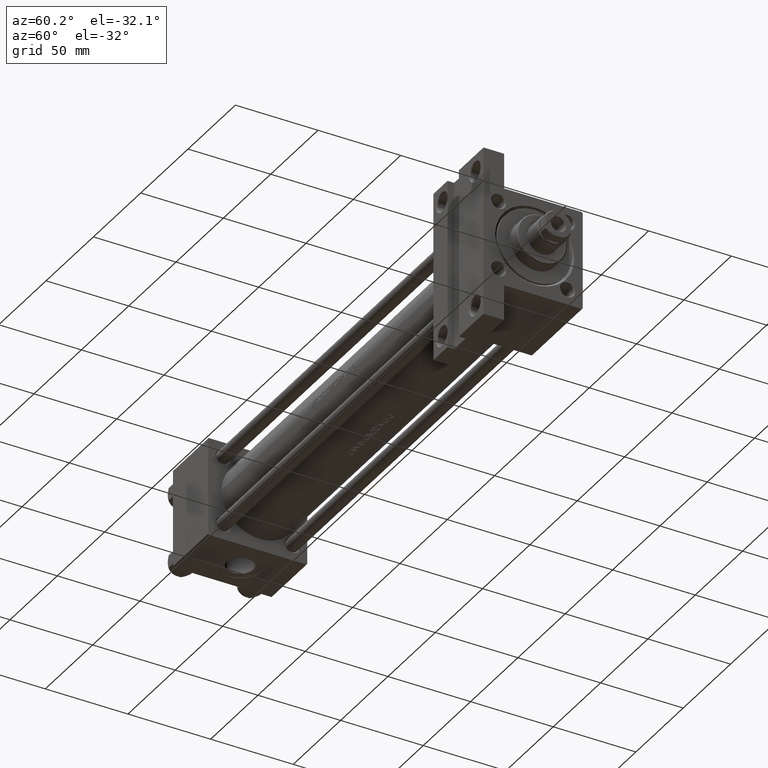
[diagram: clean part render]
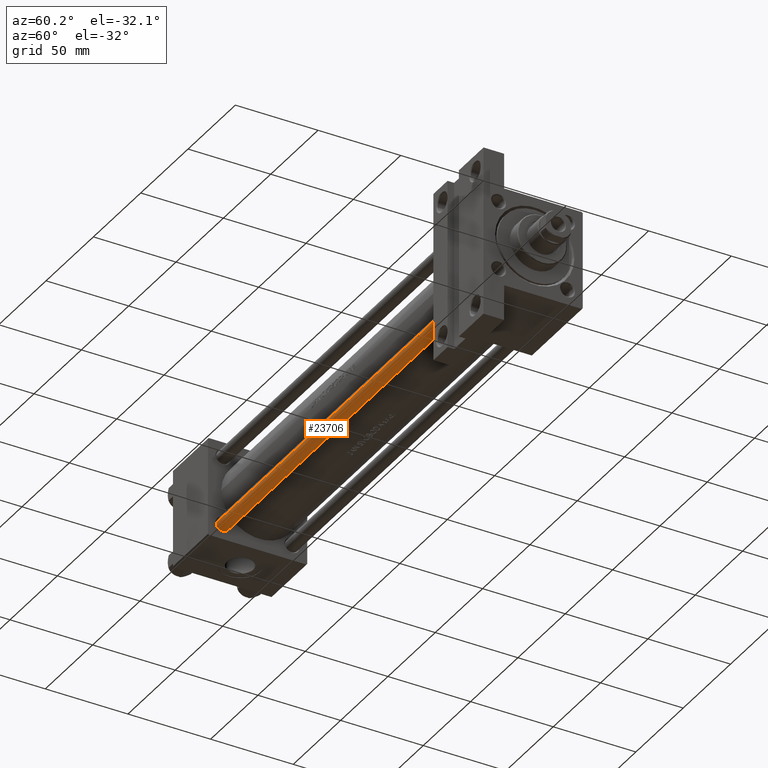
[diagram: same view with one face highlighted and labeled with its STEP entity id]
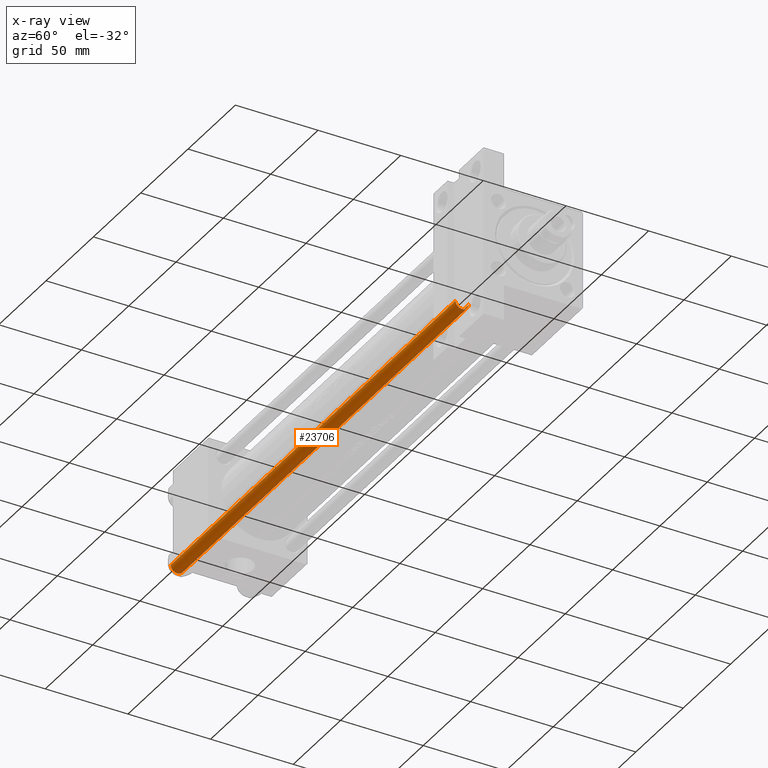
[diagram: x-ray of the same camera — body ghosted, the highlighted face saturated]
A machine part, auxiliary view. The second image highlights one B-rep face of the part: STEP entity #23706.
The next image is the same camera in x-ray: the body ghosted, the highlighted face saturated — about 0% of this face is hidden behind the body in this view.
In plain terms, the highlighted cylindrical surface (edge-blend (fillet) strip) has radius 4 mm, axis along (1, 0, 0).
Its self-contained STEP definition (entity closure, byte-faithful):
#1537 = VERTEX_POINT ( 'NONE', #43305 ) ;
#6760 = DIRECTION ( 'NONE',  ( -0.000000000000000000, -0.000000000000000000, -1.000000000000000000 ) ) ;
#7368 = CIRCLE ( 'NONE', #48345, 4.000000000000000000 ) ;
#10155 = EDGE_CURVE ( 'NONE', #17754, #1537, #35798, .T. ) ;
#11142 = CARTESIAN_POINT ( 'NONE',  ( -4.000000000000000000, 0.000000000000000000, 301.4999999999999432 ) ) ;
#11329 = ORIENTED_EDGE ( 'NONE', *, *, #10155, .T. ) ;
#12929 = DIRECTION ( 'NONE',  ( 1.000000000000000000, 0.000000000000000000, 0.000000000000000000 ) ) ;
#13455 = VERTEX_POINT ( 'NONE', #29685 ) ;
#13826 = AXIS2_PLACEMENT_3D ( 'NONE', #18048, #6760, #49376 ) ;
#16011 = EDGE_CURVE ( 'NONE', #13455, #50765, #41437, .T. ) ;
#16013 = VECTOR ( 'NONE', #32993, 1000.000000000000000 ) ;
#16990 = DIRECTION ( 'NONE',  ( 0.000000000000000000, 0.000000000000000000, -1.000000000000000000 ) ) ;
#17754 = VERTEX_POINT ( 'NONE', #11142 ) ;
#18048 = CARTESIAN_POINT ( 'NONE',  ( 0.000000000000000000, 0.000000000000000000, 302.0000000000000000 ) ) ;
#18487 = ORIENTED_EDGE ( 'NONE', *, *, #31297, .T. ) ;
#21653 = CARTESIAN_POINT ( 'NONE',  ( 4.000000000000000000, 4.898587196589412829E-16, 302.0000000000000000 ) ) ;
#23706 = ADVANCED_FACE ( 'NONE', ( #33983 ), #45268, .T. ) ;
#24204 = CARTESIAN_POINT ( 'NONE',  ( 0.000000000000000000, 0.000000000000000000, 0.5000000000000559552 ) ) ;
#25714 = VECTOR ( 'NONE', #39143, 1000.000000000000000 ) ;
#26352 = ORIENTED_EDGE ( 'NONE', *, *, #34431, .T. ) ;
#28060 = DIRECTION ( 'NONE',  ( -0.000000000000000000, -0.000000000000000000, 1.000000000000000000 ) ) ;
#28278 = CARTESIAN_POINT ( 'NONE',  ( 0.000000000000000000, 0.000000000000000000, 301.4999999999999432 ) ) ;
#29685 = CARTESIAN_POINT ( 'NONE',  ( 4.000000000000000000, 4.898587196589412829E-16, 301.4999999999999432 ) ) ;
#29791 = EDGE_LOOP ( 'NONE', ( #46224, #26352, #11329, #18487 ) ) ;
#31297 = EDGE_CURVE ( 'NONE', #1537, #50765, #40204, .T. ) ;
#32993 = DIRECTION ( 'NONE',  ( -0.000000000000000000, -0.000000000000000000, -1.000000000000000000 ) ) ;
#33983 = FACE_OUTER_BOUND ( 'NONE', #29791, .T. ) ;
#34431 = EDGE_CURVE ( 'NONE', #13455, #17754, #7368, .T. ) ;
#35798 = LINE ( 'NONE', #42968, #25714 ) ;
#39143 = DIRECTION ( 'NONE',  ( -0.000000000000000000, -0.000000000000000000, -1.000000000000000000 ) ) ;
#40204 = CIRCLE ( 'NONE', #44294, 4.000000000000000000 ) ;
#41437 = LINE ( 'NONE', #21653, #16013 ) ;
#42968 = CARTESIAN_POINT ( 'NONE',  ( -4.000000000000000000, 0.000000000000000000, 302.0000000000000000 ) ) ;
#43305 = CARTESIAN_POINT ( 'NONE',  ( -4.000000000000000000, 0.000000000000000000, 0.5000000000000559552 ) ) ;
#44294 = AXIS2_PLACEMENT_3D ( 'NONE', #24204, #28060, #12929 ) ;
#45268 = CYLINDRICAL_SURFACE ( 'NONE', #13826, 4.000000000000000000 ) ;
#46224 = ORIENTED_EDGE ( 'NONE', *, *, #16011, .F. ) ;
#47049 = CARTESIAN_POINT ( 'NONE',  ( 4.000000000000000000, 4.898587196589412829E-16, 0.5000000000000559552 ) ) ;
#48345 = AXIS2_PLACEMENT_3D ( 'NONE', #28278, #16990, #48551 ) ;
#48551 = DIRECTION ( 'NONE',  ( 1.000000000000000000, 0.000000000000000000, 0.000000000000000000 ) ) ;
#49376 = DIRECTION ( 'NONE',  ( -1.000000000000000000, 0.000000000000000000, 0.000000000000000000 ) ) ;
#50765 = VERTEX_POINT ( 'NONE', #47049 ) ;